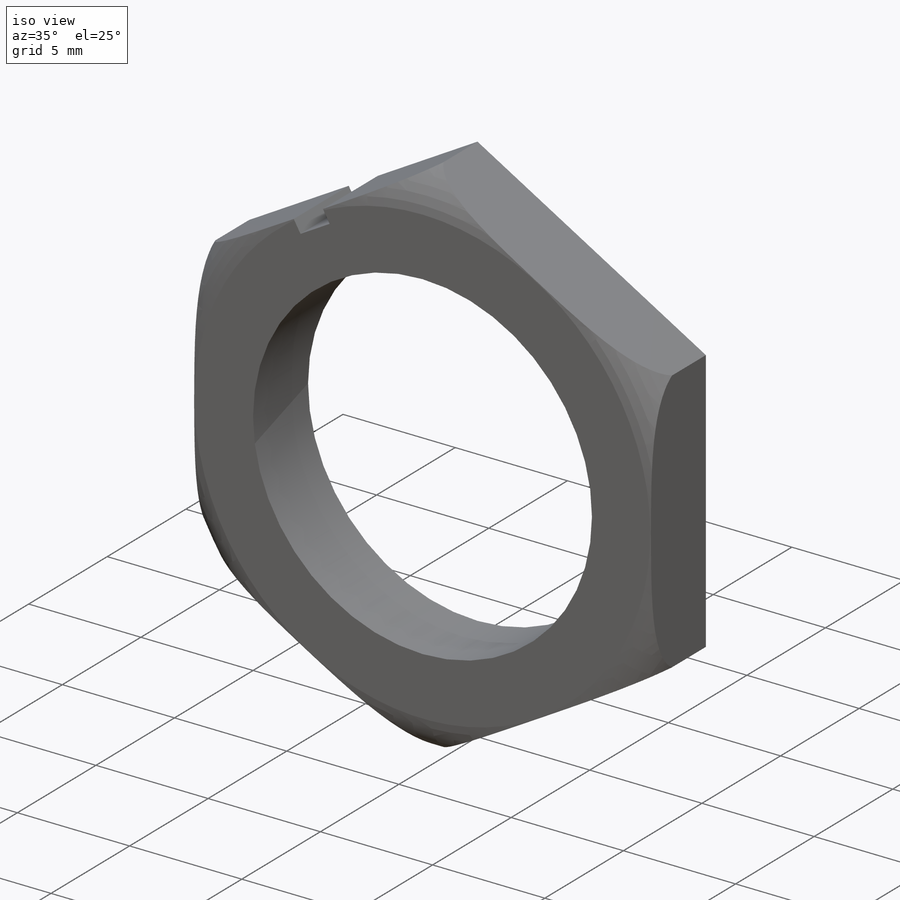
[diagram: iso view]
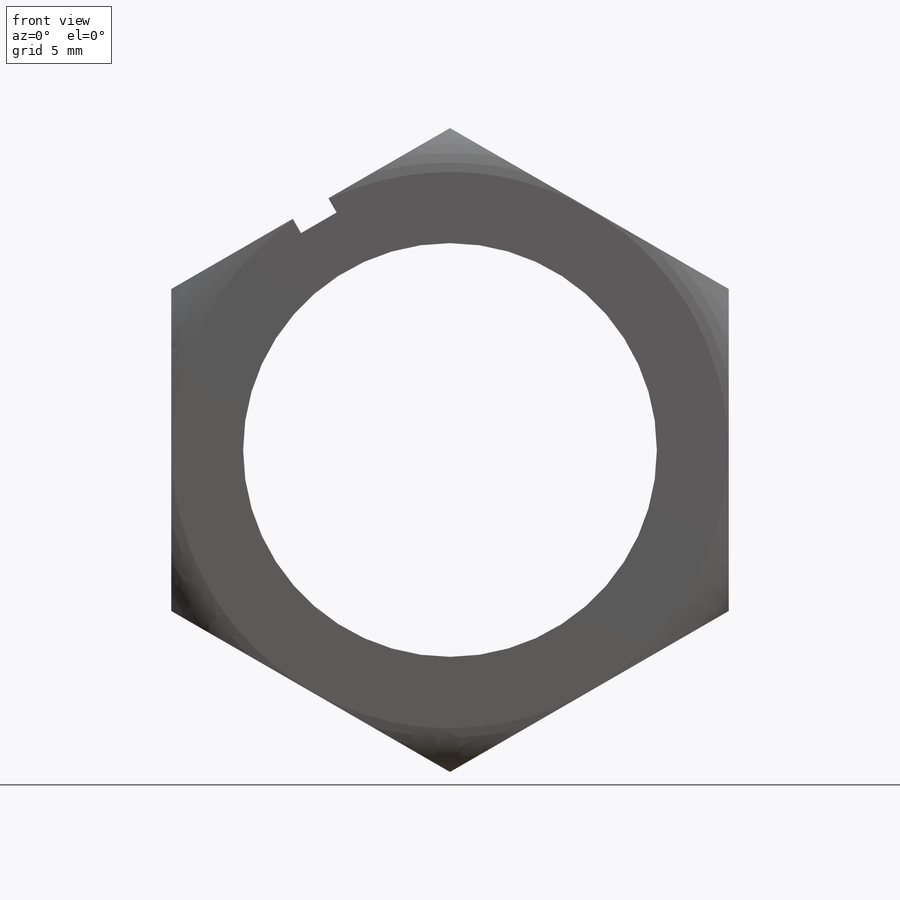
[diagram: front view]
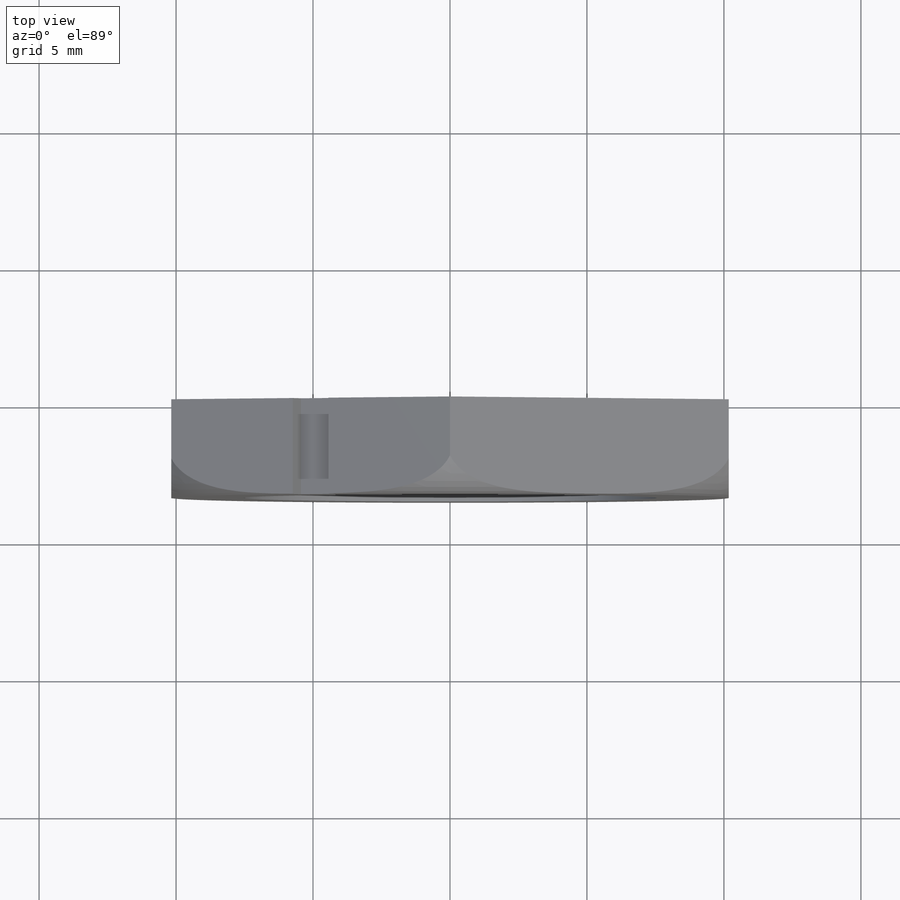
[diagram: top view]
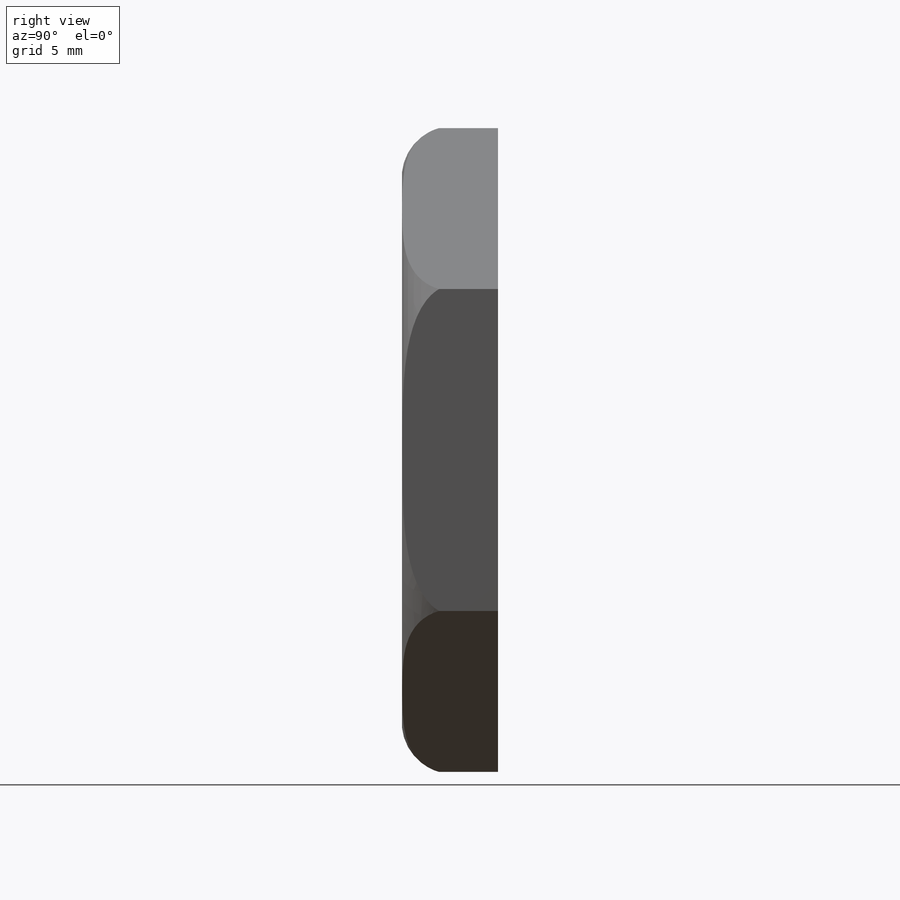
[diagram: right view]
SOLIDWORKS PART (.sldprt)
format: sldprt  version: not decoded by parser v0  size: 177,664 bytes
history: native  units: mm
features: plane x4, sketch x3, material x1, extrude x1, cut_revolve x1, cut_extrude x1 (+13 scaffold rows collapsed)
feature tree (24):
  scaffold x13  (default folders/planes/origin — collapsed)
  material  "Материал <не указан>"
  plane  "Спереди"
  plane  "Сверху"
  plane  "Справа"
  sketch  "Эскиз1"  dims[c1.D1=23.5mm c1.D3=15.1mm c1.D2=11.75mm c2.D3=11.75mm c3.D3=120.0deg]
  extrude  "Бобышка-Вытянуть1"  Depth=3.5mm
  sketch  "Эскиз3"  dims[D3=~1.868034mm D1=1.6mm D2=~1.350737mm]
  cut_revolve  "Вырез-Повернуть2"  Angle=360deg
  plane  "Плоскость1"  Offset=20mm
  sketch  "Эскиз4"  dims[D1=0.75mm D2=0.6mm]
  cut_extrude  "Вырез-Вытянуть1"  Depth=27.5mm
decode coverage: 6 of 6 modeling features carry decoded parameters
note: ~ marks probable driven/reference dimensions
note: suppression state not decoded; provenance and decode notes live in map.json
